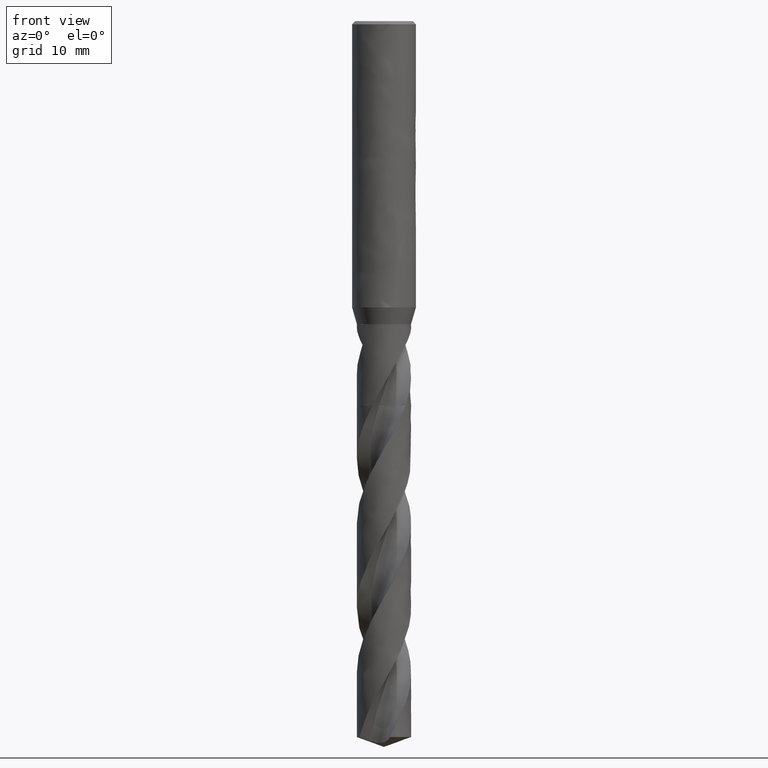
[diagram: clean part render]
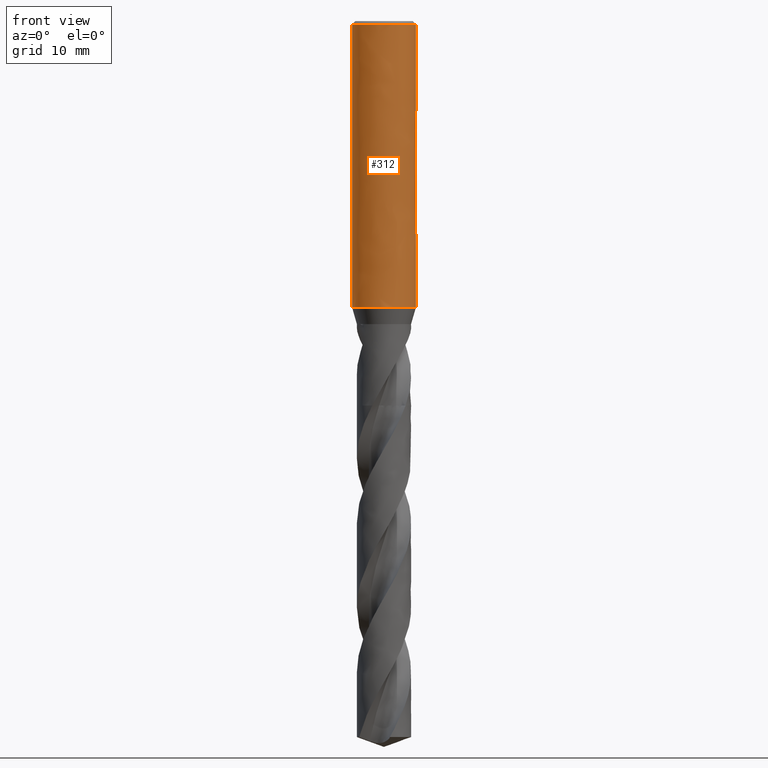
[diagram: same view with one face highlighted and labeled with its STEP entity id]
A machine part, front view. The second image highlights one B-rep face of the part: STEP entity #312.
In plain terms, the highlighted face is a freeform B-spline surface patch.
Its self-contained STEP definition (entity closure, byte-faithful):
#163 = VERTEX_POINT('', #164);
#164 = CARTESIAN_POINT('', (-4., 2.44249680855944E-15, -35.889));
#170 = EDGE_CURVE('', #163, #163, #171, .T.);
#171 = CIRCLE('', #172, 4.);
#172 = AXIS2_PLACEMENT_3D('', #173, #174, #175);
#173 = CARTESIAN_POINT('', (1.34562197099879E-31, 2.19756744872997E-15, -35.889));
#174 = DIRECTION('', (3.74939945665464E-33, 6.12323399573677E-17, -1.));
#175 = DIRECTION('', (-1., 6.12323399573677E-17, 0.));
#261 = VERTEX_POINT('', #262);
#262 = CARTESIAN_POINT('', (-4., 2.69422295812418E-16, -0.399999999999999));
#278 = EDGE_CURVE('', #261, #261, #279, .T.);
#279 = CIRCLE('', #280, 4.);
#280 = AXIS2_PLACEMENT_3D('', #281, #282, #283);
#281 = CARTESIAN_POINT('', (1.49975978266187E-33, 2.44929359829471E-17, -0.399999999999999));
#282 = DIRECTION('', (3.74939945665464E-33, 6.12323399573677E-17, -1.));
#283 = DIRECTION('', (-1., 6.12323399573677E-17, 0.));
#312 = ADVANCED_FACE('', (#313, #324), #495, .T.);
#313 = FACE_OUTER_BOUND('', #314, .T.);
#314 = EDGE_LOOP('', (#315, #321, #322, #323));
#315 = ORIENTED_EDGE('', *, *, #316, .T.);
#316 = EDGE_CURVE('', #163, #261, #317, .T.);
#317 = LINE('', #318, #319);
#318 = CARTESIAN_POINT('', (-4., 2.44249680855944E-15, -35.889));
#319 = VECTOR('', #320, 35.489);
#320 = DIRECTION('', (0., -2.17307451274702E-15, 35.489));
#321 = ORIENTED_EDGE('', *, *, #278, .T.);
#322 = ORIENTED_EDGE('', *, *, #316, .F.);
#323 = ORIENTED_EDGE('', *, *, #170, .F.);
#324 = FACE_BOUND('', #325, .T.);
#325 = EDGE_LOOP('', (#326, #403, #411, #489));
#326 = ORIENTED_EDGE('', *, *, #327, .F.);
#327 = EDGE_CURVE('', #328, #330, #332, .T.);
#328 = VERTEX_POINT('', #329);
#329 = CARTESIAN_POINT('', (-2.75499546279118, 2.9, -15.25));
#330 = VERTEX_POINT('', #331);
#331 = CARTESIAN_POINT('', (2.75499546279118, 2.9, -15.25));
#332 = B_SPLINE_CURVE_WITH_KNOTS('', 3, (#333, #334, #335, #336, #337, #338, #339, #340, #341, #342, #343, #344, #345, #346, #347, #348, #349, #350, #351, #352, #353, #354, #355, #356, #357, #358, #359, #360, #361, #362, #363, #364, #365, #366, #367, #368, #369, #370, #371, #372, #373, #374, #375, #376, #377, #378, #379, #380, #381, #382, #383, #384, #385, #386, #387, #388, #389, #390, #391, #392, #393, #394, #395, #396, #397, #398, #399, #400, #401, #402), .UNSPECIFIED., .F., .U., (4, 3, 3, 3, 3, 3, 3, 3, 3, 3, 3, 3, 3, 3, 3, 3, 3, 3, 3, 3, 3, 3, 3, 4), (0., 0.0275651498824185, 0.323329754227843, 0.61922380065768, 0.91527020553321, 1.21149541087731, 1.50792863848376, 1.80460015310043, 2.10153821450144, 2.39876467460959, 2.69628978664823, 2.99410761532925, 3.29009749181974, 3.58608736831022, 3.88390519699124, 4.18143030902988, 4.47865676913802, 4.77559483053904, 5.07226634515571, 5.36869957276216, 5.66492477810625, 5.96097118298179, 6.25686522941162, 6.58019498363947), .UNSPECIFIED.);
#333 = CARTESIAN_POINT('', (-2.75499546279118, 2.9, -15.25));
#334 = CARTESIAN_POINT('', (-2.7495403313511, 2.90518236633323, -15.2447263857062));
#335 = CARTESIAN_POINT('', (-2.74406521982218, 2.91035442984719, -15.2394632556375));
#336 = CARTESIAN_POINT('', (-2.73857013102126, 2.91551601564427, -15.2342107877709));
#337 = CARTESIAN_POINT('', (-2.67960971281275, 2.97089806100158, -15.1778536089774));
#338 = CARTESIAN_POINT('', (-2.61831798837026, 3.0251023412273, -15.122694932689));
#339 = CARTESIAN_POINT('', (-2.55471049779373, 3.07789770337849, -15.0689699818493));
#340 = CARTESIAN_POINT('', (-2.49107516924727, 3.13071617154582, -15.0152215181567));
#341 = CARTESIAN_POINT('', (-2.42505948854959, 3.18217572696542, -14.9628558941227));
#342 = CARTESIAN_POINT('', (-2.35670846888833, 3.23201565476873, -14.9121384151248));
#343 = CARTESIAN_POINT('', (-2.28832225468618, 3.28188124558901, -14.8613948212512));
#344 = CARTESIAN_POINT('', (-2.21752118151808, 3.33018085032992, -14.8122447863892));
#345 = CARTESIAN_POINT('', (-2.14439231660006, 3.37662280874054, -14.7649851061665));
#346 = CARTESIAN_POINT('', (-2.07121928470315, 3.42309281628059, -14.7176968829422));
#347 = CARTESIAN_POINT('', (-1.99562068806062, 3.46776202565151, -14.6722411652482));
#348 = CARTESIAN_POINT('', (-1.91774147403305, 3.51030876687134, -14.628945286836));
#349 = CARTESIAN_POINT('', (-1.83980756982382, 3.55288538626901, -14.5856190041692));
#350 = CARTESIAN_POINT('', (-1.75947339354897, 3.59339861346788, -14.5443924446584));
#351 = CARTESIAN_POINT('', (-1.6769604661359, 3.63150156202879, -14.5056186025088));
#352 = CARTESIAN_POINT('', (-1.59438121093989, 3.66963513953696, -14.466813592116));
#353 = CARTESIAN_POINT('', (-1.50947809076678, 3.70541802112886, -14.4304006672663));
#354 = CARTESIAN_POINT('', (-1.4225691970938, 3.73848858223215, -14.3967478197978));
#355 = CARTESIAN_POINT('', (-1.33558221946264, 3.77158885583323, -14.363064736672));
#356 = CARTESIAN_POINT('', (-1.2464160027603, 3.80203429897799, -14.3320832286456));
#357 = CARTESIAN_POINT('', (-1.15550315645899, 3.82946634081219, -14.3041681800707));
#358 = CARTESIAN_POINT('', (-1.06450201178593, 3.85692502579669, -14.2762260192292));
#359 = CARTESIAN_POINT('', (-0.971551110465516, 3.88142225604713, -14.251297456619));
#360 = CARTESIAN_POINT('', (-0.877208103576914, 3.90262808156492, -14.2297182517981));
#361 = CARTESIAN_POINT('', (-0.782770301221158, 3.92385521460939, -14.2081173642804));
#362 = CARTESIAN_POINT('', (-0.686708873945095, 3.94183334457734, -14.1898226863132));
#363 = CARTESIAN_POINT('', (-0.589703064917674, 3.95629249363931, -14.1751089493317));
#364 = CARTESIAN_POINT('', (-0.492601817846335, 3.97076586816795, -14.1603807364101));
#365 = CARTESIAN_POINT('', (-0.394300865590994, 3.98174917183471, -14.1492040453995));
#366 = CARTESIAN_POINT('', (-0.29557837600709, 3.98906422906892, -14.1417601890779));
#367 = CARTESIAN_POINT('', (-0.197461827282701, 3.99633438779939, -14.1343620218057));
#368 = CARTESIAN_POINT('', (-0.0986632921634964, 4., -14.1306318677307));
#369 = CARTESIAN_POINT('', (-7.6571373978539E-16, 4., -14.1306318677307));
#370 = CARTESIAN_POINT('', (0.0986632921634941, 4., -14.1306318677307));
#371 = CARTESIAN_POINT('', (0.197461827282698, 3.99633438779939, -14.1343620218057));
#372 = CARTESIAN_POINT('', (0.295578376007086, 3.98906422906892, -14.1417601890779));
#373 = CARTESIAN_POINT('', (0.39430086559099, 3.98174917183471, -14.1492040453995));
#374 = CARTESIAN_POINT('', (0.492601817846331, 3.97076586816795, -14.1603807364101));
#375 = CARTESIAN_POINT('', (0.58970306491767, 3.95629249363931, -14.1751089493317));
#376 = CARTESIAN_POINT('', (0.686708873945091, 3.94183334457734, -14.1898226863132));
#377 = CARTESIAN_POINT('', (0.782770301221155, 3.92385521460939, -14.2081173642804));
#378 = CARTESIAN_POINT('', (0.877208103576911, 3.90262808156492, -14.2297182517981));
#379 = CARTESIAN_POINT('', (0.971551110465514, 3.88142225604713, -14.251297456619));
#380 = CARTESIAN_POINT('', (1.06450201178592, 3.85692502579669, -14.2762260192292));
#381 = CARTESIAN_POINT('', (1.15550315645899, 3.82946634081219, -14.3041681800707));
#382 = CARTESIAN_POINT('', (1.2464160027603, 3.80203429897799, -14.3320832286456));
#383 = CARTESIAN_POINT('', (1.33558221946264, 3.77158885583323, -14.363064736672));
#384 = CARTESIAN_POINT('', (1.4225691970938, 3.73848858223216, -14.3967478197978));
#385 = CARTESIAN_POINT('', (1.50947809076678, 3.70541802112886, -14.4304006672663));
#386 = CARTESIAN_POINT('', (1.59438121093989, 3.66963513953696, -14.466813592116));
#387 = CARTESIAN_POINT('', (1.6769604661359, 3.63150156202879, -14.5056186025088));
#388 = CARTESIAN_POINT('', (1.75947339354896, 3.59339861346788, -14.5443924446584));
#389 = CARTESIAN_POINT('', (1.83980756982381, 3.55288538626901, -14.5856190041692));
#390 = CARTESIAN_POINT('', (1.91774147403304, 3.51030876687135, -14.628945286836));
#391 = CARTESIAN_POINT('', (1.99562068806062, 3.46776202565152, -14.6722411652482));
#392 = CARTESIAN_POINT('', (2.07121928470314, 3.42309281628059, -14.7176968829422));
#393 = CARTESIAN_POINT('', (2.14439231660005, 3.37662280874055, -14.7649851061665));
#394 = CARTESIAN_POINT('', (2.21752118151807, 3.33018085032992, -14.8122447863892));
#395 = CARTESIAN_POINT('', (2.28832225468618, 3.28188124558901, -14.8613948212512));
#396 = CARTESIAN_POINT('', (2.35670846888833, 3.23201565476873, -14.9121384151248));
#397 = CARTESIAN_POINT('', (2.42505948854959, 3.18217572696543, -14.9628558941227));
#398 = CARTESIAN_POINT('', (2.49107516924726, 3.13071617154583, -15.0152215181567));
#399 = CARTESIAN_POINT('', (2.55471049779373, 3.07789770337849, -15.0689699818493));
#400 = CARTESIAN_POINT('', (2.62424618256803, 3.02018183333213, -15.1277020779003));
#401 = CARTESIAN_POINT('', (2.69100864192036, 2.9607873797164, -15.1881423130012));
#402 = CARTESIAN_POINT('', (2.75499546279118, 2.9, -15.25));
#403 = ORIENTED_EDGE('', *, *, #404, .T.);
#404 = EDGE_CURVE('', #328, #405, #407, .T.);
#405 = VERTEX_POINT('', #406);
#406 = CARTESIAN_POINT('', (-2.75499546279118, 2.9, -20.75));
#407 = LINE('', #408, #409);
#408 = CARTESIAN_POINT('', (-2.75499546279118, 2.9, -15.25));
#409 = VECTOR('', #410, 5.5);
#410 = DIRECTION('', (-4.44089209850063E-16, 0., -5.5));
#411 = ORIENTED_EDGE('', *, *, #412, .T.);
#412 = EDGE_CURVE('', #405, #413, #415, .T.);
#413 = VERTEX_POINT('', #414);
#414 = CARTESIAN_POINT('', (2.75499546279118, 2.9, -20.75));
#415 = B_SPLINE_CURVE_WITH_KNOTS('', 3, (#416, #417, #418, #419, #420, #421, #422, #423, #424, #425, #426, #427, #428, #429, #430, #431, #432, #433, #434, #435, #436, #437, #438, #439, #440, #441, #442, #443, #444, #445, #446, #447, #448, #449, #450, #451, #452, #453, #454, #455, #456, #457, #458, #459, #460, #461, #462, #463, #464, #465, #466, #467, #468, #469, #470, #471, #472, #473, #474, #475, #476, #477, #478, #479, #480, #481, #482, #483, #484, #485, #486, #487, #488), .UNSPECIFIED., .F., .U., (4, 3, 3, 3, 3, 3, 3, 3, 3, 3, 3, 3, 3, 3, 3, 3, 3, 3, 3, 3, 3, 3, 3, 3, 4), (0., 0.443422422205695, 0.738860713972588, 1.03418677767532, 1.32938252694556, 1.62442725505234, 1.91929816542726, 2.21397155727197, 2.50842487936361, 2.80263970976592, 2.99894085104869, 3.29007345814309, 3.4872474966482, 3.68530175003223, 3.8832746562229, 4.08116298771897, 4.27896576611938, 4.57609603156437, 4.872944030885, 5.16953426674175, 5.46589607815955, 5.76205965537, 6.05805344567497, 6.35390278155854, 6.5804241821135), .UNSPECIFIED.);
#416 = CARTESIAN_POINT('', (-2.75499546279118, 2.9, -20.75));
#417 = CARTESIAN_POINT('', (-2.66724235399505, 2.98336531606178, -20.8348331619419));
#418 = CARTESIAN_POINT('', (-2.57422027727393, 3.06415258604797, -20.9170428851383));
#419 = CARTESIAN_POINT('', (-2.47599571183059, 3.14156732141782, -20.9958206921756));
#420 = CARTESIAN_POINT('', (-2.41055180017683, 3.19314630351234, -21.048307845677));
#421 = CARTESIAN_POINT('', (-2.34271971299793, 3.24329045867949, -21.0993349086891));
#422 = CARTESIAN_POINT('', (-2.27255949630797, 3.2917280166716, -21.1486253257994));
#423 = CARTESIAN_POINT('', (-2.20242593136059, 3.34014717470163, -21.1978970189722));
#424 = CARTESIAN_POINT('', (-2.12988274348655, 3.38691749931397, -21.2454908470694));
#425 = CARTESIAN_POINT('', (-2.05503738469365, 3.43173736575396, -21.2910998745108));
#426 = CARTESIAN_POINT('', (-1.98022505187324, 3.47653745515367, -21.3366887766898));
#427 = CARTESIAN_POINT('', (-1.90301056261523, 3.519448580392, -21.3803554549731));
#428 = CARTESIAN_POINT('', (-1.82356518022225, 3.56014185580879, -21.4217652328814));
#429 = CARTESIAN_POINT('', (-1.74416044182266, 3.60081431268123, -21.4631538256852));
#430 = CARTESIAN_POINT('', (-1.66240289395493, 3.63933314650406, -21.502350875752));
#431 = CARTESIAN_POINT('', (-1.5785460472355, 3.67534928636151, -21.5390011659373));
#432 = CARTESIAN_POINT('', (-1.4947386025406, 3.71134420827083, -21.5756298645816));
#433 = CARTESIAN_POINT('', (-1.40868478848897, 3.74490161629374, -21.6097781310747));
#434 = CARTESIAN_POINT('', (-1.32073858060278, 3.77566545150764, -21.6410836372246));
#435 = CARTESIAN_POINT('', (-1.23285128326053, 3.80640867964468, -21.6723681734607));
#436 = CARTESIAN_POINT('', (-1.14289702732146, 3.83442177081428, -21.7008745021349));
#437 = CARTESIAN_POINT('', (-1.0513442293651, 3.8593620342463, -21.726253898586));
#438 = CARTESIAN_POINT('', (-0.959859805419419, 3.88428367164094, -21.7516143410437));
#439 = CARTESIAN_POINT('', (-0.866574202102871, 3.90619059125, -21.7739069843951));
#440 = CARTESIAN_POINT('', (-0.772074452714005, 3.92478038104902, -21.7928240919284));
#441 = CARTESIAN_POINT('', (-0.677651243147184, 3.94335511409697, -21.8117258776005));
#442 = CARTESIAN_POINT('', (-0.581785251603103, 3.95866134366949, -21.827301609972));
#443 = CARTESIAN_POINT('', (-0.485170882582416, 3.97046712802094, -21.8393152634078));
#444 = CARTESIAN_POINT('', (-0.420709445077233, 3.97834398772498, -21.8473308140761));
#445 = CARTESIAN_POINT('', (-0.355823858528568, 3.98467660623896, -21.8537749334927));
#446 = CARTESIAN_POINT('', (-0.290741007327622, 3.98941971552983, -21.8586015565727));
#447 = CARTESIAN_POINT('', (-0.194217166337958, 3.99645418188373, -21.8657598815401));
#448 = CARTESIAN_POINT('', (-0.0970442023647982, 4., -21.8693681322693));
#449 = CARTESIAN_POINT('', (9.66374651222127E-16, 4., -21.8693681322693));
#450 = CARTESIAN_POINT('', (0.0657246795017055, 4., -21.8693681322693));
#451 = CARTESIAN_POINT('', (0.131489701268734, 3.99837709119683, -21.8677166482731));
#452 = CARTESIAN_POINT('', (0.197052250671388, 3.99514335293558, -21.8644259723115));
#453 = CARTESIAN_POINT('', (0.262907481260273, 3.9918951787752, -21.8611206062723));
#454 = CARTESIAN_POINT('', (0.328639219249591, 3.98701784499982, -21.8561573953644));
#455 = CARTESIAN_POINT('', (0.394008672407502, 3.98054734503531, -21.8495729667643));
#456 = CARTESIAN_POINT('', (0.459351276247841, 3.97407950271135, -21.8429912425989));
#457 = CARTESIAN_POINT('', (0.524410480681415, 3.96601220841524, -21.8347819042819));
#458 = CARTESIAN_POINT('', (0.588961634304912, 3.95640293616776, -21.8250034378018));
#459 = CARTESIAN_POINT('', (0.653485211457424, 3.94679776903386, -21.8152291487156));
#460 = CARTESIAN_POINT('', (0.717576028180887, 3.93564105020771, -21.8038759891568));
#461 = CARTESIAN_POINT('', (0.781028734224063, 3.92300829929231, -21.7910208084317));
#462 = CARTESIAN_POINT('', (0.844454007748154, 3.91038100989625, -21.7781711853891));
#463 = CARTESIAN_POINT('', (0.907311809061336, 3.8962653083265, -21.7638069431147));
#464 = CARTESIAN_POINT('', (0.969419520729965, 3.88075067388098, -21.7480191364037));
#465 = CARTESIAN_POINT('', (1.06271487787062, 3.85744530128533, -21.7243034169544));
#466 = CARTESIAN_POINT('', (1.1544914336299, 3.83093536499364, -21.6973267097968));
#467 = CARTESIAN_POINT('', (1.24423289780537, 3.8015634278569, -21.6674376094205));
#468 = CARTESIAN_POINT('', (1.33388910989368, 3.77221939330641, -21.6375769029223));
#469 = CARTESIAN_POINT('', (1.42170364387654, 3.73995917363383, -21.6047486648846));
#470 = CARTESIAN_POINT('', (1.50728302186432, 3.70514478691452, -21.5693212875772));
#471 = CARTESIAN_POINT('', (1.59278808829549, 3.67036063074058, -21.5339246730963));
#472 = CARTESIAN_POINT('', (1.67622194287628, 3.6329637909704, -21.4958693724724));
#473 = CARTESIAN_POINT('', (1.75730026868264, 3.59331264513516, -21.4555200733306));
#474 = CARTESIAN_POINT('', (1.83831615052138, 3.55369203736101, -21.4152018499456));
#475 = CARTESIAN_POINT('', (1.91711291663925, 3.51175746479679, -21.3725289188831));
#476 = CARTESIAN_POINT('', (1.99349629595741, 3.4678483989362, -21.3278467288449));
#477 = CARTESIAN_POINT('', (2.06982858300231, 3.42396870352257, -21.2831944263906));
#478 = CARTESIAN_POINT('', (2.14385956949714, 3.37805601840628, -21.2364733385851));
#479 = CARTESIAN_POINT('', (2.21546518868423, 3.33042249537931, -21.1880011133995));
#480 = CARTESIAN_POINT('', (2.28702975725797, 3.28281628006029, -21.1395566767395));
#481 = CARTESIAN_POINT('', (2.35626036779493, 3.23343335123207, -21.0893042432772));
#482 = CARTESIAN_POINT('', (2.42308530146576, 3.18255520326368, -21.0375302637639));
#483 = CARTESIAN_POINT('', (2.4898776224351, 3.13170188545614, -20.9857815516058));
#484 = CARTESIAN_POINT('', (2.55433855419146, 3.07930087109134, -20.9324578919889));
#485 = CARTESIAN_POINT('', (2.61643396066481, 3.02560296957151, -20.8778145104152));
#486 = CARTESIAN_POINT('', (2.66397822301836, 2.98448838054326, -20.8359760006611));
#487 = CARTESIAN_POINT('', (2.710166973946, 2.9425869942663, -20.7933368402098));
#488 = CARTESIAN_POINT('', (2.75499546279118, 2.9, -20.75));
#489 = ORIENTED_EDGE('', *, *, #490, .F.);
#490 = EDGE_CURVE('', #330, #413, #491, .T.);
#491 = LINE('', #492, #493);
#492 = CARTESIAN_POINT('', (2.75499546279118, 2.9, -15.25));
#493 = VECTOR('', #494, 5.5);
#494 = DIRECTION('', (0., 8.88178419700125E-16, -5.5));
#495 = (
   BOUNDED_SURFACE ()
   B_SPLINE_SURFACE (1, 2, ((#496, #497, #498, #499, #500, #501, #502, #503, #504), (#505, #506, #507, #508, #509, #510, #511, #512, #513)), .UNSPECIFIED., .F., .T., .U.)
   B_SPLINE_SURFACE_WITH_KNOTS ((2, 2), (3, 2, 2, 2, 3), (0., 1.), (0., 6.28318530717959, 12.5663706143592, 18.8495559215388, 25.1327412287183), .UNSPECIFIED.)
   GEOMETRIC_REPRESENTATION_ITEM ()
   RATIONAL_B_SPLINE_SURFACE (((1., 0.707106781186548, 1., 0.707106781186548, 1., 0.707106781186548, 1., 0.707106781186548, 1.), (1., 0.707106781186548, 1., 0.707106781186548, 1., 0.707106781186548, 1., 0.707106781186548, 1.)))
   REPRESENTATION_ITEM ('')
   SURFACE ()
);
#496 = CARTESIAN_POINT('', (-4., 2.44249680855944E-15, -35.889));
#497 = CARTESIAN_POINT('', (-4., 4., -35.889));
#498 = CARTESIAN_POINT('', (9.86076131526265E-32, 4., -35.889));
#499 = CARTESIAN_POINT('', (4., 4., -35.889));
#500 = CARTESIAN_POINT('', (4., 2.44249680855944E-15, -35.889));
#501 = CARTESIAN_POINT('', (4., -4., -35.889));
#502 = CARTESIAN_POINT('', (4.89858719658941E-16, -4., -35.889));
#503 = CARTESIAN_POINT('', (-4., -4., -35.889));
#504 = CARTESIAN_POINT('', (-4., 2.44249680855944E-15, -35.889));
#505 = CARTESIAN_POINT('', (-4., 2.69422295812418E-16, -0.399999999999999));
#506 = CARTESIAN_POINT('', (-4., 4., -0.399999999999998));
#507 = CARTESIAN_POINT('', (0., 4., -0.399999999999998));
#508 = CARTESIAN_POINT('', (4., 4., -0.399999999999998));
#509 = CARTESIAN_POINT('', (4., 2.69422295812418E-16, -0.399999999999999));
#510 = CARTESIAN_POINT('', (4., -4., -0.399999999999999));
#511 = CARTESIAN_POINT('', (4.89858719658941E-16, -4., -0.399999999999999));
#512 = CARTESIAN_POINT('', (-4., -4., -0.399999999999999));
#513 = CARTESIAN_POINT('', (-4., 2.69422295812418E-16, -0.399999999999999));